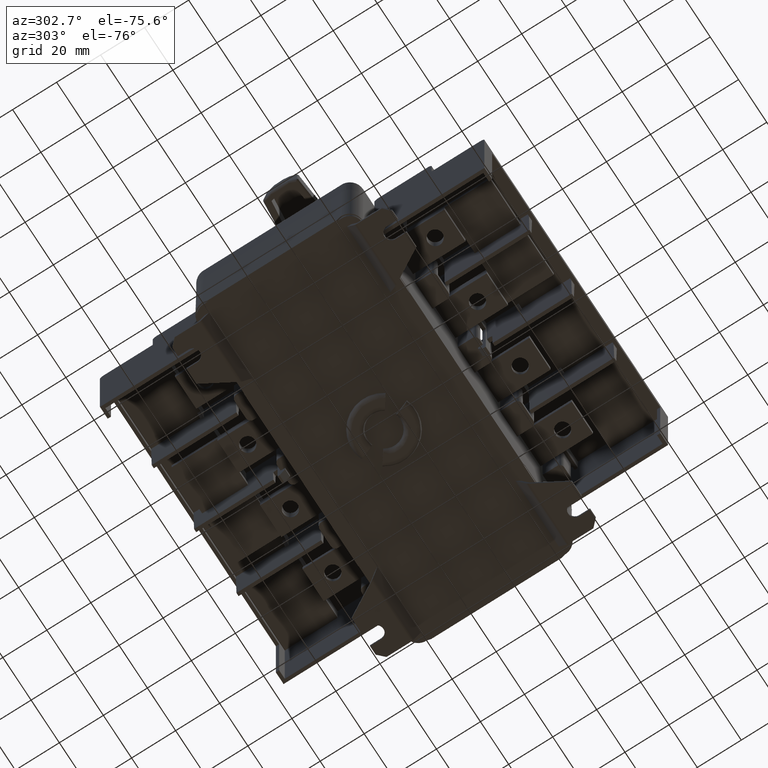
[diagram: clean part render]
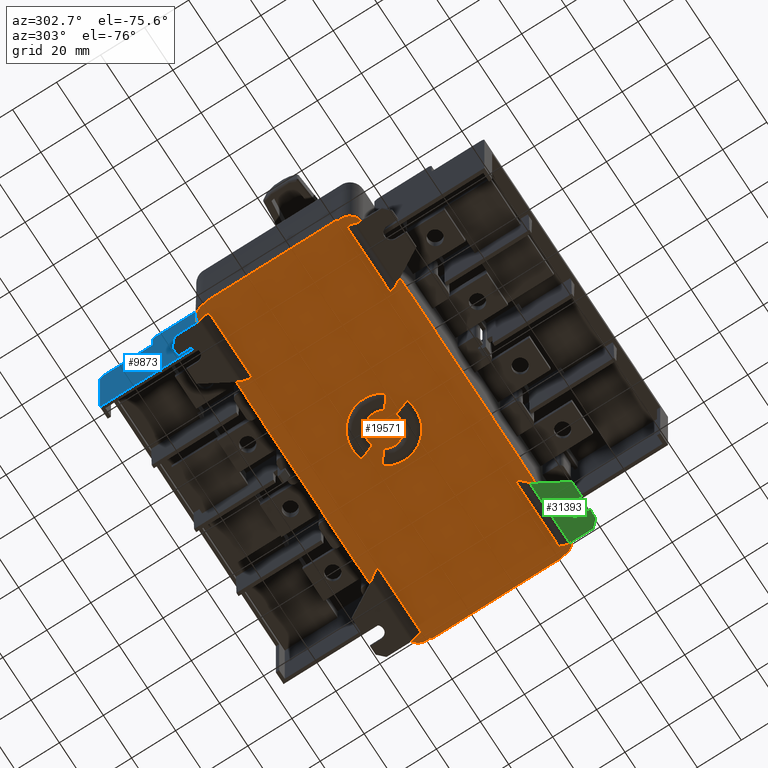
[diagram: same view with three faces highlighted in distinct colors, each labeled with its STEP entity id]
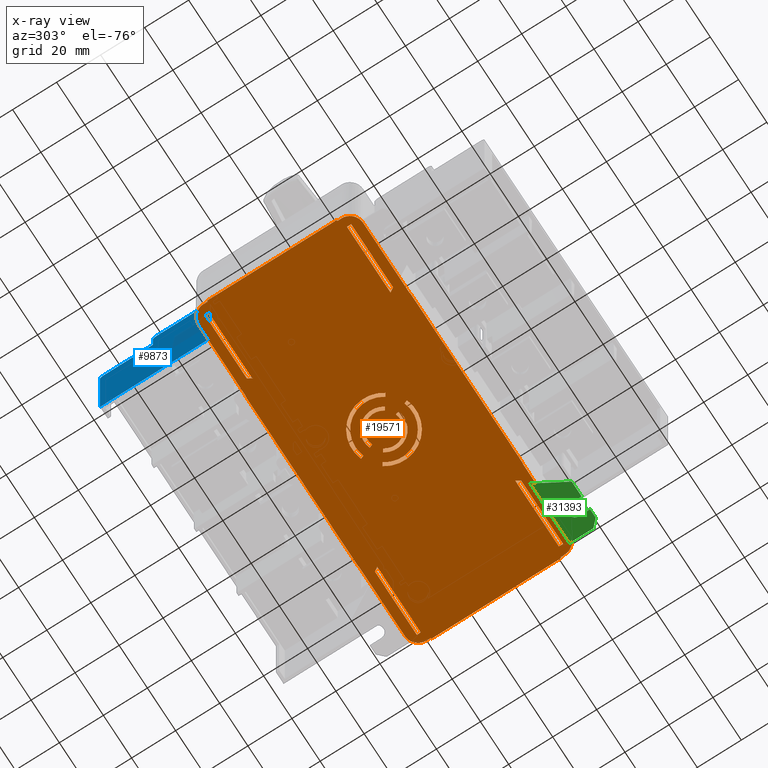
[diagram: x-ray of the same camera — body ghosted, the three highlighted faces saturated]
A machine part, auxiliary view with three faces highlighted in distinct colors.
The next image is the same camera in x-ray (body ghosted, the three faces saturated) — at least one of them is partly hidden behind the body in this view.
Their STEP definitions:

[orange] entity #19571 — the highlighted planar face has unit normal (0, 0, 1).
#51 = CARTESIAN_POINT ( 'NONE',  ( 0.002094471664462055300, -0.2000000000000025100, -0.1406741090683172000 ) ) ;
#64 = VECTOR ( 'NONE', #22459, 1000.000000000000100 ) ;
#66 = ORIENTED_EDGE ( 'NONE', *, *, #9062, .T. ) ;
#115 = VERTEX_POINT ( 'NONE', #24952 ) ;
#132 = EDGE_CURVE ( 'NONE', #25472, #2476, #32640, .T. ) ;
#160 = EDGE_CURVE ( 'NONE', #23864, #21494, #12847, .T. ) ;
#190 = EDGE_LOOP ( 'NONE', ( #23857, #37404, #916, #6493, #32429 ) ) ;
#294 = DIRECTION ( 'NONE',  ( -0.0000000000000000000, -1.000000000000000000, -0.0000000000000000000 ) ) ;
#335 = VECTOR ( 'NONE', #13210, 1000.000000000000100 ) ;
#345 = ORIENTED_EDGE ( 'NONE', *, *, #34439, .F. ) ;
#566 = ORIENTED_EDGE ( 'NONE', *, *, #7958, .F. ) ;
#572 = LINE ( 'NONE', #7226, #39124 ) ;
#585 = EDGE_CURVE ( 'NONE', #2476, #2756, #30519, .T. ) ;
#618 = CARTESIAN_POINT ( 'NONE',  ( 0.002094471664462055300, -0.2000000000000025100, -4.270019519516029800 ) ) ;
#620 = ORIENTED_EDGE ( 'NONE', *, *, #24465, .F. ) ;
#665 = LINE ( 'NONE', #36728, #33989 ) ;
#841 = VERTEX_POINT ( 'NONE', #11527 ) ;
#916 = ORIENTED_EDGE ( 'NONE', *, *, #14933, .F. ) ;
#1191 = EDGE_CURVE ( 'NONE', #11430, #25472, #20059, .T. ) ;
#1203 = EDGE_LOOP ( 'NONE', ( #20675, #33537, #1840, #27173, #6197 ) ) ;
#1585 = EDGE_CURVE ( 'NONE', #11119, #14227, #26264, .T. ) ;
#1754 = VECTOR ( 'NONE', #3989, 1000.000000000000000 ) ;
#1840 = ORIENTED_EDGE ( 'NONE', *, *, #11761, .F. ) ;
#1877 = ORIENTED_EDGE ( 'NONE', *, *, #24648, .F. ) ;
#1879 = CARTESIAN_POINT ( 'NONE',  ( -35.21157719051585400, -0.2000000000000025100, -6.174038756865900100 ) ) ;
#2026 = EDGE_CURVE ( 'NONE', #115, #43028, #24240, .T. ) ;
#2341 = VERTEX_POINT ( 'NONE', #5651 ) ;
#2406 = EDGE_CURVE ( 'NONE', #11258, #32479, #10724, .T. ) ;
#2476 = VERTEX_POINT ( 'NONE', #41782 ) ;
#2481 = CARTESIAN_POINT ( 'NONE',  ( -123.4842338622105900, -0.1999999999999885200, -6.174038756865920500 ) ) ;
#2650 = ORIENTED_EDGE ( 'NONE', *, *, #5289, .F. ) ;
#2707 = VECTOR ( 'NONE', #21878, 1000.000000000000000 ) ;
#2720 = CARTESIAN_POINT ( 'NONE',  ( -35.21157719446195200, -0.2000000000000025100, -68.82456497406150200 ) ) ;
#2756 = VERTEX_POINT ( 'NONE', #30797 ) ;
#2765 = LINE ( 'NONE', #28255, #26705 ) ;
#2963 = CARTESIAN_POINT ( 'NONE',  ( -79.34790552990919800, -0.2000000000000025100, -37.49930187198290100 ) ) ;
#2969 = DIRECTION ( 'NONE',  ( 1.000000000000000000, 0.0000000000000000000, 0.0000000000000000000 ) ) ;
#3491 = DIRECTION ( 'NONE',  ( 0.0000000000000000000, 0.0000000000000000000, 1.000000000000000000 ) ) ;
#3504 = CARTESIAN_POINT ( 'NONE',  ( -158.2737750162825100, -0.2000000000000025100, -66.99930186546369300 ) ) ;
#3692 = DIRECTION ( 'NONE',  ( 0.0000000000000000000, 1.000000000000000000, 0.0000000000000000000 ) ) ;
#3712 = LINE ( 'NONE', #32381, #64 ) ;
#3795 = CARTESIAN_POINT ( 'NONE',  ( -81.91305660313490500, -0.1999999999883775000, -30.45160721546369900 ) ) ;
#3833 = CARTESIAN_POINT ( 'NONE',  ( -157.9659110940365000, -0.2000000000000025100, -4.243283958416244900 ) ) ;
#3914 = DIRECTION ( 'NONE',  ( 1.000000000000000000, -1.122364443586768100E-017, 0.0000000000000000000 ) ) ;
#3989 = DIRECTION ( 'NONE',  ( -0.0000000000000000000, -0.0000000000000000000, -1.000000000000000000 ) ) ;
#4065 = CIRCLE ( 'NONE', #17113, 1.500000000000154800 ) ;
#4130 = CARTESIAN_POINT ( 'NONE',  ( -122.4743242843903900, -0.1999999999999885200, -5.064947847775010300 ) ) ;
#4140 = CARTESIAN_POINT ( 'NONE',  ( -0.4220360403885739500, -0.2000000000000025100, -74.99930186546370700 ) ) ;
#4202 = EDGE_CURVE ( 'NONE', #20645, #20740, #20747, .T. ) ;
#4211 = ORIENTED_EDGE ( 'NONE', *, *, #10341, .F. ) ;
#4260 = CARTESIAN_POINT ( 'NONE',  ( -0.4220360403885739500, -0.2000000000000025100, -6.140491341919870100 ) ) ;
#4313 = AXIS2_PLACEMENT_3D ( 'NONE', #2963, #36278, #19657 ) ;
#4326 = VERTEX_POINT ( 'NONE', #4381 ) ;
#4354 = VECTOR ( 'NONE', #24785, 1000.000000000000100 ) ;
#4362 = VERTEX_POINT ( 'NONE', #1879 ) ;
#4381 = CARTESIAN_POINT ( 'NONE',  ( -119.3479055283354000, -0.2000000000000030100, 0.0006981345362970839900 ) ) ;
#4552 = CARTESIAN_POINT ( 'NONE',  ( -4.347905528335539700, -0.2000000000000025100, -74.99930186546370700 ) ) ;
#4590 =( BOUNDED_CURVE ( )  B_SPLINE_CURVE ( 3, ( #33816, #24177, #30891, #27528 ),
 .UNSPECIFIED., .F., .F. ) 
 B_SPLINE_CURVE_WITH_KNOTS ( ( 4, 4 ),
 ( 0.0000000000000000000, 0.001931341339190807000 ),
 .UNSPECIFIED. ) 
 CURVE ( )  GEOMETRIC_REPRESENTATION_ITEM ( )  RATIONAL_B_SPLINE_CURVE ( ( 1.000000000000000000, 0.9913931346834109500, 0.9913931346834109500, 1.000000000000000000 ) ) 
 REPRESENTATION_ITEM ( '' )  );
#4711 = LINE ( 'NONE', #7695, #13487 ) ;
#4751 = CARTESIAN_POINT ( 'NONE',  ( -158.6979055283355300, -0.2000000000000025100, -74.99930186546370700 ) ) ;
#4805 = CARTESIAN_POINT ( 'NONE',  ( -1.575944010087480200, -0.2000000000000300100, -73.29353438887676500 ) ) ;
#4825 = DIRECTION ( 'NONE',  ( -0.0000000000000000000, -1.000000000000000000, -0.0000000000000000000 ) ) ;
#4868 = ORIENTED_EDGE ( 'NONE', *, *, #9968, .F. ) ;
#4900 = LINE ( 'NONE', #4140, #1754 ) ;
#4945 = AXIS2_PLACEMENT_3D ( 'NONE', #16546, #294, #36523 ) ;
#5033 = VECTOR ( 'NONE', #22745, 1000.000000000000000 ) ;
#5082 = CARTESIAN_POINT ( 'NONE',  ( -6.422145710120490800, -0.2000000000000025100, -74.85792962185910000 ) ) ;
#5148 = DIRECTION ( 'NONE',  ( 0.0000000000000000000, 0.0000000000000000000, 1.000000000000000000 ) ) ;
#5289 = EDGE_CURVE ( 'NONE', #23341, #11430, #11359, .T. ) ;
#5428 = CIRCLE ( 'NONE', #42246, 1.500000000000001300 ) ;
#5490 = CIRCLE ( 'NONE', #26729, 1.500000000000001300 ) ;
#5542 = EDGE_CURVE ( 'NONE', #34669, #8844, #21153, .T. ) ;
#5622 = DIRECTION ( 'NONE',  ( 1.000000000000000000, 0.0000000000000000000, 0.0000000000000000000 ) ) ;
#5649 = FACE_BOUND ( 'NONE', #7432, .T. ) ;
#5651 = CARTESIAN_POINT ( 'NONE',  ( -83.78263119263911600, -0.1999999999953525100, -25.31499324745490000 ) ) ;
#5916 = DIRECTION ( 'NONE',  ( 0.0000000000000000000, 0.0000000000000000000, 1.000000000000000000 ) ) ;
#5951 = EDGE_CURVE ( 'NONE', #34333, #29510, #32369, .T. ) ;
#5983 = VERTEX_POINT ( 'NONE', #6185 ) ;
#6104 = CARTESIAN_POINT ( 'NONE',  ( -0.7298999626343459800, -0.2000000000000025100, -70.75531977251120000 ) ) ;
#6185 = CARTESIAN_POINT ( 'NONE',  ( -39.34790552833555200, -0.2000000000000090000, -0.1406741090683194000 ) ) ;
#6197 = ORIENTED_EDGE ( 'NONE', *, *, #37645, .F. ) ;
#6282 = VERTEX_POINT ( 'NONE', #38031 ) ;
#6303 = DIRECTION ( 'NONE',  ( 0.0000000000000000000, 0.0000000000000000000, -1.000000000000000000 ) ) ;
#6420 = VERTEX_POINT ( 'NONE', #19015 ) ;
#6421 = CARTESIAN_POINT ( 'NONE',  ( -4.347905528335539700, -0.2000000000000025100, -6.174038756865900100 ) ) ;
#6493 = ORIENTED_EDGE ( 'NONE', *, *, #18164, .F. ) ;
#6669 = VECTOR ( 'NONE', #17595, 1000.000000000000000 ) ;
#6672 = FACE_BOUND ( 'NONE', #29640, .T. ) ;
#6797 = CIRCLE ( 'NONE', #4313, 12.96627041062015800 ) ;
#6826 = CARTESIAN_POINT ( 'NONE',  ( 0.002094471664462055300, -0.2000000000000025100, -74.85792962185900000 ) ) ;
#6876 = ORIENTED_EDGE ( 'NONE', *, *, #132, .F. ) ;
#6900 = CARTESIAN_POINT ( 'NONE',  ( -82.43762301712499200, -0.1999999999990995100, -29.01037283804575000 ) ) ;
#7131 = CARTESIAN_POINT ( 'NONE',  ( -68.72655861684830800, -0.2000000000000025100, -44.93644904773080400 ) ) ;
#7226 = CARTESIAN_POINT ( 'NONE',  ( -76.78275444833529700, -0.1999999999883800000, -44.54699652546369700 ) ) ;
#7328 = ORIENTED_EDGE ( 'NONE', *, *, #13318, .F. ) ;
#7347 = DIRECTION ( 'NONE',  ( 1.000000000000000000, 0.0000000000000000000, 0.0000000000000000000 ) ) ;
#7381 = AXIS2_PLACEMENT_3D ( 'NONE', #19043, #15442, #28941 ) ;
#7404 = CARTESIAN_POINT ( 'NONE',  ( -79.34790552990919800, -0.2000000000000025100, -37.49930187198290100 ) ) ;
#7432 = EDGE_LOOP ( 'NONE', ( #31086, #6876, #9853, #2650, #42581 ) ) ;
#7574 = LINE ( 'NONE', #10633, #21587 ) ;
#7585 = EDGE_CURVE ( 'NONE', #8843, #35506, #24720, .T. ) ;
#7588 = CARTESIAN_POINT ( 'NONE',  ( -0.7298999626343459800, -0.2000000000000025100, -4.243283958416270700 ) ) ;
#7695 = CARTESIAN_POINT ( 'NONE',  ( 0.002094471664462055300, -0.2000000000000025100, -4.270019519516099000 ) ) ;
#7909 = CARTESIAN_POINT ( 'NONE',  ( -85.49975796032030900, -0.1999999999971104900, -33.19172841766000200 ) ) ;
#7958 = EDGE_CURVE ( 'NONE', #4326, #27105, #30956, .T. ) ;
#8041 = EDGE_CURVE ( 'NONE', #5983, #841, #12213, .T. ) ;
#8071 = DIRECTION ( 'NONE',  ( 0.0000000000000000000, 0.0000000000000000000, 1.000000000000000000 ) ) ;
#8154 = DIRECTION ( 'NONE',  ( 0.0000000000000000000, 0.0000000000000000000, 1.000000000000000000 ) ) ;
#8184 = CARTESIAN_POINT ( 'NONE',  ( -39.34790552833555200, -0.2000000000000235200, -75.99930186546370700 ) ) ;
#8208 = CIRCLE ( 'NONE', #4945, 9.033729589379548800 ) ;
#8210 = CARTESIAN_POINT ( 'NONE',  ( -119.3479055283354000, -0.2000000000000000100, -0.1406741090683391900 ) ) ;
#8261 =( BOUNDED_CURVE ( )  B_SPLINE_CURVE ( 3, ( #11331, #4805, #21739, #5082 ),
 .UNSPECIFIED., .F., .F. ) 
 B_SPLINE_CURVE_WITH_KNOTS ( ( 4, 4 ),
 ( 0.0000000000000000000, 0.007452055741065036600 ),
 .UNSPECIFIED. ) 
 CURVE ( )  GEOMETRIC_REPRESENTATION_ITEM ( )  RATIONAL_B_SPLINE_CURVE ( ( 1.000000000000000000, 0.8741631191513600200, 0.8741631191513600200, 1.000000000000000000 ) ) 
 REPRESENTATION_ITEM ( '' )  );
#8305 = CARTESIAN_POINT ( 'NONE',  ( -154.3479055283355000, -0.2000000000000025100, -70.72858421141140200 ) ) ;
#8315 = VECTOR ( 'NONE', #14110, 1000.000000000000000 ) ;
#8420 = CARTESIAN_POINT ( 'NONE',  ( 0.002094471664462055300, -0.2000000000000025100, -70.72858421141140200 ) ) ;
#8470 = EDGE_CURVE ( 'NONE', #5983, #27105, #14801, .T. ) ;
#8490 = ORIENTED_EDGE ( 'NONE', *, *, #14480, .F. ) ;
#8576 = VERTEX_POINT ( 'NONE', #6900 ) ;
#8602 = CARTESIAN_POINT ( 'NONE',  ( -124.6653271762659900, -0.1999999999999835000, -4.270019519516119500 ) ) ;
#8630 = LINE ( 'NONE', #27261, #42964 ) ;
#8766 = EDGE_CURVE ( 'NONE', #32874, #14227, #4900, .T. ) ;
#8843 = VERTEX_POINT ( 'NONE', #26368 ) ;
#8844 = VERTEX_POINT ( 'NONE', #26082 ) ;
#9062 = EDGE_CURVE ( 'NONE', #8843, #29078, #2765, .T. ) ;
#9090 = CARTESIAN_POINT ( 'NONE',  ( -79.34790552990919800, -0.2000000000000025100, -37.49930187198290100 ) ) ;
#9132 = EDGE_LOOP ( 'NONE', ( #20654, #14611, #23083, #566, #33841, #1877, #36174, #36526, #42754, #19347, #8490, #620, #9194, #4868, #38951, #13973, #35885, #34848, #23736, #10880, #20483, #9473, #33228, #30098, #19228, #28450, #20882, #21396 ) ) ;
#9178 = LINE ( 'NONE', #36948, #335 ) ;
#9194 = ORIENTED_EDGE ( 'NONE', *, *, #4202, .F. ) ;
#9219 = CIRCLE ( 'NONE', #25768, 12.96627041062015800 ) ;
#9238 = DIRECTION ( 'NONE',  ( 0.0000000000000000000, 0.0000000000000000000, 1.000000000000000000 ) ) ;
#9328 = VERTEX_POINT ( 'NONE', #24114 ) ;
#9384 = CARTESIAN_POINT ( 'NONE',  ( -158.2737750162825100, -0.2000000000000025100, -74.99930186546370700 ) ) ;
#9473 = ORIENTED_EDGE ( 'NONE', *, *, #23749, .F. ) ;
#9512 = EDGE_LOOP ( 'NONE', ( #25516, #37805, #66, #11783 ) ) ;
#9774 = CARTESIAN_POINT ( 'NONE',  ( -158.2737750162825100, -0.2000000000000000100, -7.999301865463709600 ) ) ;
#9853 = ORIENTED_EDGE ( 'NONE', *, *, #1191, .F. ) ;
#9949 = DIRECTION ( 'NONE',  ( 1.000000000000000000, 0.0000000000000000000, 0.0000000000000000000 ) ) ;
#9968 = EDGE_CURVE ( 'NONE', #29819, #20645, #4590, .T. ) ;
#9992 = VECTOR ( 'NONE', #18753, 1000.000000000000000 ) ;
#10002 = ORIENTED_EDGE ( 'NONE', *, *, #29484, .T. ) ;
#10237 = CIRCLE ( 'NONE', #17469, 14.48997487421321800 ) ;
#10247 = CARTESIAN_POINT ( 'NONE',  ( -39.34790552833555200, -0.2000000000000130300, -74.99930186546370700 ) ) ;
#10341 = EDGE_CURVE ( 'NONE', #26597, #29510, #35467, .T. ) ;
#10515 = CIRCLE ( 'NONE', #31020, 1.500000000000000000 ) ;
#10594 = CARTESIAN_POINT ( 'NONE',  ( -154.3479055283355000, -0.2000000000000025100, -74.99930186546370700 ) ) ;
#10633 = CARTESIAN_POINT ( 'NONE',  ( -155.6979055283355300, -0.2000000000000025100, -66.99930186546369300 ) ) ;
#10670 = CARTESIAN_POINT ( 'NONE',  ( -34.92244866265890100, -0.2000000000000025100, -5.814947847775020100 ) ) ;
#10724 = LINE ( 'NONE', #19564, #5033 ) ;
#10828 = AXIS2_PLACEMENT_3D ( 'NONE', #35588, #39093, #42003 ) ;
#10849 = CARTESIAN_POINT ( 'NONE',  ( -158.6979055283355300, -0.2000000000000000100, -66.99930186546369300 ) ) ;
#10875 = DIRECTION ( 'NONE',  ( 0.0000000000000000000, 0.0000000000000000000, -1.000000000000000000 ) ) ;
#10880 = ORIENTED_EDGE ( 'NONE', *, *, #26395, .F. ) ;
#10938 = DIRECTION ( 'NONE',  ( 0.0000000000000000000, 1.000000000000000000, 0.0000000000000000000 ) ) ;
#11080 = CARTESIAN_POINT ( 'NONE',  ( -0.5255482635673498500, -0.2000000000000298800, -4.856358976215178200 ) ) ;
#11119 = VERTEX_POINT ( 'NONE', #35444 ) ;
#11258 = VERTEX_POINT ( 'NONE', #10247 ) ;
#11305 = CARTESIAN_POINT ( 'NONE',  ( -152.2736653465505000, -0.2000000000000025100, -0.1406741090683343900 ) ) ;
#11331 = CARTESIAN_POINT ( 'NONE',  ( -0.7298999626343459800, -0.2000000000000025100, -70.75531977251120000 ) ) ;
#11359 = LINE ( 'NONE', #25619, #26913 ) ;
#11430 = VERTEX_POINT ( 'NONE', #18200 ) ;
#11527 = CARTESIAN_POINT ( 'NONE',  ( -6.422145710120490800, -0.2000000000000025100, -0.1406741090683472100 ) ) ;
#11716 = EDGE_CURVE ( 'NONE', #17172, #32874, #21850, .T. ) ;
#11761 = EDGE_CURVE ( 'NONE', #17345, #32783, #16099, .T. ) ;
#11783 = ORIENTED_EDGE ( 'NONE', *, *, #28485, .F. ) ;
#11788 = VECTOR ( 'NONE', #27014, 1000.000000000000200 ) ;
#11835 = LINE ( 'NONE', #23682, #24823 ) ;
#11898 = CARTESIAN_POINT ( 'NONE',  ( -74.91317985902219300, -0.1999999999944225000, -49.68361049354240300 ) ) ;
#11976 = DIRECTION ( 'NONE',  ( -1.000000000000000000, -0.0000000000000000000, -0.0000000000000000000 ) ) ;
#11987 =( BOUNDED_CURVE ( )  B_SPLINE_CURVE ( 3, ( #23279, #33345, #16168, #22843 ),
 .UNSPECIFIED., .F., .F. ) 
 B_SPLINE_CURVE_WITH_KNOTS ( ( 4, 4 ),
 ( 1.755771606739170500E-018, 0.007452050543765641000 ),
 .UNSPECIFIED. ) 
 CURVE ( )  GEOMETRIC_REPRESENTATION_ITEM ( )  RATIONAL_B_SPLINE_CURVE ( ( 1.000000000000000000, 0.8741631191513600200, 0.8741631191513600200, 1.000000000000000000 ) ) 
 REPRESENTATION_ITEM ( '' )  );
#12038 = ORIENTED_EDGE ( 'NONE', *, *, #32371, .F. ) ;
#12089 = VECTOR ( 'NONE', #11976, 1000.000000000000000 ) ;
#12108 = CARTESIAN_POINT ( 'NONE',  ( 0.002094471664462055300, -0.2000000000000025100, -74.85792962185910000 ) ) ;
#12213 = LINE ( 'NONE', #51, #35648 ) ;
#12260 = CARTESIAN_POINT ( 'NONE',  ( -0.4220360403885730100, -0.2000000000000025100, -68.85811238900748800 ) ) ;
#12301 = EDGE_CURVE ( 'NONE', #14834, #19084, #41622, .T. ) ;
#12369 = FACE_BOUND ( 'NONE', #1203, .T. ) ;
#12559 = VERTEX_POINT ( 'NONE', #20490 ) ;
#12634 = CARTESIAN_POINT ( 'NONE',  ( -158.2737750162825100, -0.2000000000000025100, -68.85811238900748800 ) ) ;
#12847 = LINE ( 'NONE', #9384, #13897 ) ;
#12977 = VECTOR ( 'NONE', #24842, 1000.000000000000000 ) ;
#13204 = CARTESIAN_POINT ( 'NONE',  ( -158.2737750162825100, -0.2000000000000025100, -74.99930186546370700 ) ) ;
#13210 = DIRECTION ( 'NONE',  ( -0.5000000000000011100, 0.0000000000000000000, -0.8660254037844379300 ) ) ;
#13241 = DIRECTION ( 'NONE',  ( -0.0000000000000000000, 1.000000000000000000, -0.0000000000000000000 ) ) ;
#13318 = EDGE_CURVE ( 'NONE', #14834, #43098, #25325, .T. ) ;
#13447 = DIRECTION ( 'NONE',  ( 0.0000000000000000000, 0.0000000000000000000, 1.000000000000000000 ) ) ;
#13487 = VECTOR ( 'NONE', #14055, 1000.000000000000000 ) ;
#13834 =( BOUNDED_CURVE ( )  B_SPLINE_CURVE ( 3, ( #36800, #16835, #23952, #37239 ),
 .UNSPECIFIED., .F., .T. ) 
 B_SPLINE_CURVE_WITH_KNOTS ( ( 4, 4 ),
 ( 0.0000000000000000000, 0.007452050543765535200 ),
 .UNSPECIFIED. ) 
 CURVE ( )  GEOMETRIC_REPRESENTATION_ITEM ( )  RATIONAL_B_SPLINE_CURVE ( ( 1.000000000000000000, 0.8741631191513640200, 0.8741631191513640200, 1.000000000000000000 ) ) 
 REPRESENTATION_ITEM ( '' )  );
#13897 = VECTOR ( 'NONE', #9238, 1000.000000000000000 ) ;
#13918 = FACE_BOUND ( 'NONE', #30791, .T. ) ;
#13958 = EDGE_LOOP ( 'NONE', ( #30499, #32835, #39954, #23423, #18236 ) ) ;
#13973 = ORIENTED_EDGE ( 'NONE', *, *, #2026, .F. ) ;
#14011 = AXIS2_PLACEMENT_3D ( 'NONE', #30478, #37187, #10875 ) ;
#14043 = VERTEX_POINT ( 'NONE', #23672 ) ;
#14055 = DIRECTION ( 'NONE',  ( -1.000000000000000000, -0.0000000000000000000, -0.0000000000000000000 ) ) ;
#14110 = DIRECTION ( 'NONE',  ( -0.8191520442889898000, -0.0000000000000000000, 0.5735764363510488200 ) ) ;
#14182 = CARTESIAN_POINT ( 'NONE',  ( -76.25818803438321000, -0.2000000000000300100, -45.98823090289590000 ) ) ;
#14183 = DIRECTION ( 'NONE',  ( -0.0000000000000000000, -0.0000000000000000000, -1.000000000000000000 ) ) ;
#14227 = VERTEX_POINT ( 'NONE', #42553 ) ;
#14273 = EDGE_LOOP ( 'NONE', ( #18576, #18749, #4211, #30126 ) ) ;
#14311 = CARTESIAN_POINT ( 'NONE',  ( -152.2736653465505000, -0.2000000000000025100, -0.1406741090683343900 ) ) ;
#14336 = LINE ( 'NONE', #35752, #39868 ) ;
#14378 = LINE ( 'NONE', #25540, #14934 ) ;
#14379 =( BOUNDED_CURVE ( )  B_SPLINE_CURVE ( 3, ( #32049, #18214, #15454, #38767 ),
 .UNSPECIFIED., .F., .T. ) 
 B_SPLINE_CURVE_WITH_KNOTS ( ( 4, 4 ),
 ( 0.0000000000000000000, 0.001931341382892498600 ),
 .UNSPECIFIED. ) 
 CURVE ( )  GEOMETRIC_REPRESENTATION_ITEM ( )  RATIONAL_B_SPLINE_CURVE ( ( 1.000000000000000000, 0.9913931346834109500, 0.9913931346834109500, 1.000000000000000000 ) ) 
 REPRESENTATION_ITEM ( '' )  );
#14480 = EDGE_CURVE ( 'NONE', #34532, #23349, #28394, .T. ) ;
#14609 = CARTESIAN_POINT ( 'NONE',  ( -157.9659110940365000, -0.2000000000000025100, -4.243283958416244900 ) ) ;
#14611 = ORIENTED_EDGE ( 'NONE', *, *, #8041, .F. ) ;
#14801 = LINE ( 'NONE', #8184, #22050 ) ;
#14834 = VERTEX_POINT ( 'NONE', #24548 ) ;
#14856 = CARTESIAN_POINT ( 'NONE',  ( -119.3479055283354000, -0.1999999999999889900, -75.99930186546370700 ) ) ;
#14859 = CIRCLE ( 'NONE', #21120, 7.510025125786371300 ) ;
#14933 = EDGE_CURVE ( 'NONE', #17535, #31250, #14378, .T. ) ;
#14934 = VECTOR ( 'NONE', #28888, 1000.000000000000000 ) ;
#15051 = DIRECTION ( 'NONE',  ( 0.3420201433256628300, -0.0000000000000000000, -0.9396926207859105400 ) ) ;
#15099 = CARTESIAN_POINT ( 'NONE',  ( -158.6979055283355300, -0.2000000000000000100, -7.999301865463709600 ) ) ;
#15210 = VERTEX_POINT ( 'NONE', #15871 ) ;
#15287 = CARTESIAN_POINT ( 'NONE',  ( 0.002094471664462055300, -0.2000000000000025100, -70.72858421141140200 ) ) ;
#15442 = DIRECTION ( 'NONE',  ( 2.966608577261725000E-016, -1.000000000000000000, -1.682447329014820100E-015 ) ) ;
#15454 = CARTESIAN_POINT ( 'NONE',  ( -158.1702627931037500, -0.2000000000000300700, -4.856358976215172900 ) ) ;
#15491 = CARTESIAN_POINT ( 'NONE',  ( -79.34790552990919800, -0.2000000000000025100, -28.46557228260308700 ) ) ;
#15505 = CARTESIAN_POINT ( 'NONE',  ( -154.3479055283355000, -0.2000000000000000100, -6.174038756865920500 ) ) ;
#15619 = PLANE ( 'NONE',  #16841 ) ;
#15742 = VERTEX_POINT ( 'NONE', #36629 ) ;
#15748 = VERTEX_POINT ( 'NONE', #36776 ) ;
#15871 = CARTESIAN_POINT ( 'NONE',  ( -34.92244866660495000, -0.2000000000000025100, -69.18365588315239700 ) ) ;
#16043 = CARTESIAN_POINT ( 'NONE',  ( -0.7298999626343459800, -0.2000000000000025100, -4.243283958416270700 ) ) ;
#16099 = LINE ( 'NONE', #37978, #12977 ) ;
#16155 = VECTOR ( 'NONE', #30254, 1000.000000000000000 ) ;
#16168 = CARTESIAN_POINT ( 'NONE',  ( -1.575944010087478000, -0.2000000000000300100, -1.705069342050635100 ) ) ;
#16204 = EDGE_CURVE ( 'NONE', #21852, #40764, #665, .T. ) ;
#16383 = VERTEX_POINT ( 'NONE', #8602 ) ;
#16445 = CARTESIAN_POINT ( 'NONE',  ( -79.34790552990919800, -0.2000000000000025100, -37.49930187198290100 ) ) ;
#16495 = DIRECTION ( 'NONE',  ( -0.0000000000000000000, -0.0000000000000000000, -1.000000000000000000 ) ) ;
#16546 = CARTESIAN_POINT ( 'NONE',  ( -79.34790552990919800, -0.2000000000000000100, -37.49930187198315000 ) ) ;
#16585 = DIRECTION ( 'NONE',  ( -1.000000000000000000, -0.0000000000000000000, -0.0000000000000000000 ) ) ;
#16682 = ORIENTED_EDGE ( 'NONE', *, *, #12301, .T. ) ;
#16683 = AXIS2_PLACEMENT_3D ( 'NONE', #9090, #25915, #19242 ) ;
#16835 = CARTESIAN_POINT ( 'NONE',  ( -154.9493164850315200, -0.2000000000000301800, -74.85792962185905700 ) ) ;
#16841 = AXIS2_PLACEMENT_3D ( 'NONE', #42551, #38934, #42407 ) ;
#16991 = EDGE_CURVE ( 'NONE', #25066, #34669, #31844, .T. ) ;
#17057 = EDGE_CURVE ( 'NONE', #30579, #4362, #10515, .T. ) ;
#17113 = AXIS2_PLACEMENT_3D ( 'NONE', #4130, #3692, #37126 ) ;
#17172 = VERTEX_POINT ( 'NONE', #16043 ) ;
#17345 = VERTEX_POINT ( 'NONE', #32907 ) ;
#17423 = CARTESIAN_POINT ( 'NONE',  ( -154.3479055283355000, -0.2000000000000000100, -4.270019519516094600 ) ) ;
#17469 = AXIS2_PLACEMENT_3D ( 'NONE', #7404, #27721, #3914 ) ;
#17525 = EDGE_CURVE ( 'NONE', #23349, #23864, #38088, .T. ) ;
#17535 = VERTEX_POINT ( 'NONE', #17423 ) ;
#17595 = DIRECTION ( 'NONE',  ( -0.0000000000000000000, -0.0000000000000000000, -1.000000000000000000 ) ) ;
#17959 = CARTESIAN_POINT ( 'NONE',  ( -152.2736653465505000, -0.2000000000000025100, -74.85792962185910000 ) ) ;
#18164 = EDGE_CURVE ( 'NONE', #16383, #17535, #4711, .T. ) ;
#18200 = CARTESIAN_POINT ( 'NONE',  ( -154.3479055283355000, -0.2000000000000000100, -68.82456497406150200 ) ) ;
#18214 = CARTESIAN_POINT ( 'NONE',  ( -158.2737750162822600, -0.2000000000000300700, -5.494251694092243500 ) ) ;
#18236 = ORIENTED_EDGE ( 'NONE', *, *, #28540, .T. ) ;
#18425 = LINE ( 'NONE', #41602, #38261 ) ;
#18435 = VECTOR ( 'NONE', #16495, 1000.000000000000000 ) ;
#18456 = VECTOR ( 'NONE', #5622, 1000.000000000000000 ) ;
#18457 = LINE ( 'NONE', #33078, #28841 ) ;
#18464 = DIRECTION ( 'NONE',  ( -0.3420201433256344600, -0.0000000000000000000, 0.9396926207859207500 ) ) ;
#18485 = CARTESIAN_POINT ( 'NONE',  ( 0.002094471664462050100, -0.2000000000000000100, -66.99930186546369300 ) ) ;
#18576 = ORIENTED_EDGE ( 'NONE', *, *, #20766, .F. ) ;
#18749 = ORIENTED_EDGE ( 'NONE', *, *, #5951, .T. ) ;
#18753 = DIRECTION ( 'NONE',  ( 1.000000000000000000, 0.0000000000000000000, 0.0000000000000000000 ) ) ;
#19015 = CARTESIAN_POINT ( 'NONE',  ( -0.4220360403885730100, -0.2000000000000025100, -68.85811238900748800 ) ) ;
#19043 = CARTESIAN_POINT ( 'NONE',  ( -79.34790552990919800, -0.2000000000000195000, -37.49930187198325600 ) ) ;
#19084 = VERTEX_POINT ( 'NONE', #33041 ) ;
#19228 = ORIENTED_EDGE ( 'NONE', *, *, #22975, .F. ) ;
#19242 = DIRECTION ( 'NONE',  ( 0.0000000000000000000, 0.0000000000000000000, 1.000000000000000000 ) ) ;
#19290 = CIRCLE ( 'NONE', #14011, 12.96627041062013700 ) ;
#19347 = ORIENTED_EDGE ( 'NONE', *, *, #17525, .F. ) ;
#19472 = LINE ( 'NONE', #22880, #18435 ) ;
#19525 = VECTOR ( 'NONE', #29374, 1000.000000000000000 ) ;
#19551 = CIRCLE ( 'NONE', #29991, 9.033729589379810000 ) ;
#19564 = CARTESIAN_POINT ( 'NONE',  ( 0.002094471664462055300, -0.2000000000000025100, -74.99930186546370700 ) ) ;
#19571 = ADVANCED_FACE ( 'NONE', ( #43126, #12369, #29007, #40511, #41557, #5649, #13918, #6672, #32667 ), #15619, .F. ) ;
#19657 = DIRECTION ( 'NONE',  ( -1.284358943782111200E-014, 0.0000000000000000000, -1.000000000000000000 ) ) ;
#19861 = LINE ( 'NONE', #12108, #12089 ) ;
#20059 = LINE ( 'NONE', #10594, #32549 ) ;
#20111 = CARTESIAN_POINT ( 'NONE',  ( -79.34790552990929800, -0.2000000000000025100, -37.49930187198250300 ) ) ;
#20279 = DIRECTION ( 'NONE',  ( 0.0000000000000000000, 1.000000000000000000, 0.0000000000000000000 ) ) ;
#20483 = ORIENTED_EDGE ( 'NONE', *, *, #40186, .F. ) ;
#20490 = CARTESIAN_POINT ( 'NONE',  ( -34.03048388040589600, -0.2000000000000000100, -70.72858421141140200 ) ) ;
#20645 = VERTEX_POINT ( 'NONE', #12634 ) ;
#20654 = ORIENTED_EDGE ( 'NONE', *, *, #37230, .F. ) ;
#20675 = ORIENTED_EDGE ( 'NONE', *, *, #36855, .F. ) ;
#20740 = VERTEX_POINT ( 'NONE', #3504 ) ;
#20747 = LINE ( 'NONE', #13204, #24924 ) ;
#20766 = EDGE_CURVE ( 'NONE', #34333, #28473, #8208, .T. ) ;
#20882 = ORIENTED_EDGE ( 'NONE', *, *, #8766, .F. ) ;
#20957 = EDGE_CURVE ( 'NONE', #2341, #35506, #33629, .T. ) ;
#21111 = EDGE_CURVE ( 'NONE', #43098, #8576, #19551, .T. ) ;
#21120 = AXIS2_PLACEMENT_3D ( 'NONE', #20111, #33504, #36872 ) ;
#21153 = LINE ( 'NONE', #618, #34222 ) ;
#21396 = ORIENTED_EDGE ( 'NONE', *, *, #11716, .F. ) ;
#21494 = VERTEX_POINT ( 'NONE', #27260 ) ;
#21509 = DIRECTION ( 'NONE',  ( 0.0000000000000000000, 0.0000000000000000000, 1.000000000000000000 ) ) ;
#21587 = VECTOR ( 'NONE', #27319, 1000.000000000000000 ) ;
#21616 = DIRECTION ( 'NONE',  ( 0.8191520442889940200, -0.0000000000000000000, -0.5735764363510429400 ) ) ;
#21739 = CARTESIAN_POINT ( 'NONE',  ( -3.746494571639495500, -0.2000000000000300100, -74.85792962185905700 ) ) ;
#21844 = EDGE_CURVE ( 'NONE', #22398, #17345, #43008, .T. ) ;
#21850 =( BOUNDED_CURVE ( )  B_SPLINE_CURVE ( 3, ( #7588, #11080, #24255, #4260 ),
 .UNSPECIFIED., .F., .T. ) 
 B_SPLINE_CURVE_WITH_KNOTS ( ( 4, 4 ),
 ( 0.0000000000000000000, 0.001931341339190684300 ),
 .UNSPECIFIED. ) 
 CURVE ( )  GEOMETRIC_REPRESENTATION_ITEM ( )  RATIONAL_B_SPLINE_CURVE ( ( 1.000000000000000000, 0.9913931346834119500, 0.9913931346834119500, 1.000000000000000000 ) ) 
 REPRESENTATION_ITEM ( '' )  );
#21852 = VERTEX_POINT ( 'NONE', #38417 ) ;
#21864 = LINE ( 'NONE', #37370, #36464 ) ;
#21878 = DIRECTION ( 'NONE',  ( 0.8191520442889940200, -0.0000000000000000000, -0.5735764363510429400 ) ) ;
#22050 = VECTOR ( 'NONE', #21509, 1000.000000000000000 ) ;
#22342 = CARTESIAN_POINT ( 'NONE',  ( -81.91648539827299700, -0.2000000000000245200, -30.44218667880485200 ) ) ;
#22398 = VERTEX_POINT ( 'NONE', #38923 ) ;
#22459 = DIRECTION ( 'NONE',  ( -0.4999999999998908100, 0.0000000000000000000, 0.8660254037845016600 ) ) ;
#22477 = EDGE_CURVE ( 'NONE', #115, #32479, #40386, .T. ) ;
#22531 = CARTESIAN_POINT ( 'NONE',  ( -76.77932565407140000, -0.2000000000000270200, -44.55641706244065100 ) ) ;
#22678 = CARTESIAN_POINT ( 'NONE',  ( -84.30376881152669500, -0.1999999999971485100, -23.88317940671185000 ) ) ;
#22692 = CARTESIAN_POINT ( 'NONE',  ( -4.347905528335539700, -0.2000000000000130300, -4.270019519516044900 ) ) ;
#22713 = VECTOR ( 'NONE', #28847, 1000.000000000000000 ) ;
#22745 = DIRECTION ( 'NONE',  ( -1.000000000000000000, -0.0000000000000000000, -0.0000000000000000000 ) ) ;
#22843 = CARTESIAN_POINT ( 'NONE',  ( -0.7298999626343459800, -0.2000000000000025100, -4.243283958416270700 ) ) ;
#22880 = CARTESIAN_POINT ( 'NONE',  ( -0.4220360403885744500, -0.2000000000000025100, -74.99930186546370700 ) ) ;
#22889 = DIRECTION ( 'NONE',  ( 1.000000000000000000, 0.0000000000000000000, 0.0000000000000000000 ) ) ;
#22959 = ORIENTED_EDGE ( 'NONE', *, *, #16991, .F. ) ;
#22975 = EDGE_CURVE ( 'NONE', #11119, #40764, #8630, .T. ) ;
#22990 = EDGE_CURVE ( 'NONE', #36562, #27289, #24765, .T. ) ;
#23003 = LINE ( 'NONE', #41843, #4354 ) ;
#23047 = VERTEX_POINT ( 'NONE', #2481 ) ;
#23083 = ORIENTED_EDGE ( 'NONE', *, *, #8470, .T. ) ;
#23163 = VECTOR ( 'NONE', #39779, 1000.000000000000000 ) ;
#23184 = VECTOR ( 'NONE', #40151, 1000.000000000000000 ) ;
#23279 = CARTESIAN_POINT ( 'NONE',  ( -6.422145710120490800, -0.2000000000000025100, -0.1406741090683472100 ) ) ;
#23341 = VERTEX_POINT ( 'NONE', #31541 ) ;
#23349 = VERTEX_POINT ( 'NONE', #15099 ) ;
#23355 = EDGE_CURVE ( 'NONE', #15748, #35718, #18425, .T. ) ;
#23361 = VECTOR ( 'NONE', #18464, 1000.000000000000200 ) ;
#23423 = ORIENTED_EDGE ( 'NONE', *, *, #28790, .F. ) ;
#23466 = VECTOR ( 'NONE', #5148, 1000.000000000000000 ) ;
#23672 = CARTESIAN_POINT ( 'NONE',  ( -6.422145710120490800, -0.2000000000000025100, -74.85792962185910000 ) ) ;
#23682 = CARTESIAN_POINT ( 'NONE',  ( -76.78275444833529700, -0.2000000000000329800, -44.54699652546369700 ) ) ;
#23736 = ORIENTED_EDGE ( 'NONE', *, *, #27055, .T. ) ;
#23749 = EDGE_CURVE ( 'NONE', #6420, #33738, #38942, .T. ) ;
#23857 = ORIENTED_EDGE ( 'NONE', *, *, #31174, .F. ) ;
#23864 = VERTEX_POINT ( 'NONE', #9774 ) ;
#23952 = CARTESIAN_POINT ( 'NONE',  ( -157.1198670465834700, -0.2000000000000301800, -73.29353438887677900 ) ) ;
#24114 = CARTESIAN_POINT ( 'NONE',  ( -39.34790552833555200, -0.2000000000000110000, -74.85792962185910000 ) ) ;
#24177 = CARTESIAN_POINT ( 'NONE',  ( -158.1702627931037500, -0.2000000000000300700, -70.14224475471220900 ) ) ;
#24237 = CARTESIAN_POINT ( 'NONE',  ( -89.96925243977220500, -0.1999999999976780100, -30.06215469166565400 ) ) ;
#24240 = LINE ( 'NONE', #6826, #23184 ) ;
#24255 = CARTESIAN_POINT ( 'NONE',  ( -0.4220360403885725100, -0.2000000000000298800, -5.494251694092247000 ) ) ;
#24257 = EDGE_CURVE ( 'NONE', #43028, #29819, #13834, .T. ) ;
#24391 = EDGE_CURVE ( 'NONE', #2756, #23341, #5490, .T. ) ;
#24465 = EDGE_CURVE ( 'NONE', #20740, #34532, #7574, .T. ) ;
#24485 = CARTESIAN_POINT ( 'NONE',  ( -154.9493164850315200, -0.2000000000000301800, -0.1406741090683975600 ) ) ;
#24548 = CARTESIAN_POINT ( 'NONE',  ( -71.94790746980209000, -0.1999999999957065000, -42.68083629765255400 ) ) ;
#24648 = EDGE_CURVE ( 'NONE', #27289, #30614, #18457, .T. ) ;
#24682 = CARTESIAN_POINT ( 'NONE',  ( -79.34790552990919800, -0.2000000000000025100, -37.49930187198290100 ) ) ;
#24720 = CIRCLE ( 'NONE', #7381, 14.48997487421355900 ) ;
#24765 =( BOUNDED_CURVE ( )  B_SPLINE_CURVE ( 3, ( #14609, #34556, #24485, #11305 ),
 .UNSPECIFIED., .F., .T. ) 
 B_SPLINE_CURVE_WITH_KNOTS ( ( 4, 4 ),
 ( 0.0000000000000000000, 0.007452055741064872600 ),
 .UNSPECIFIED. ) 
 CURVE ( )  GEOMETRIC_REPRESENTATION_ITEM ( )  RATIONAL_B_SPLINE_CURVE ( ( 1.000000000000000000, 0.8741631191513640200, 0.8741631191513640200, 1.000000000000000000 ) ) 
 REPRESENTATION_ITEM ( '' )  );
#24785 = DIRECTION ( 'NONE',  ( 0.5000000000000156500, 0.0000000000000000000, -0.8660254037844294900 ) ) ;
#24823 = VECTOR ( 'NONE', #26896, 1000.000000000000000 ) ;
#24842 = DIRECTION ( 'NONE',  ( -1.000000000000000000, -0.0000000000000000000, -0.0000000000000000000 ) ) ;
#24924 = VECTOR ( 'NONE', #3491, 1000.000000000000000 ) ;
#24952 = CARTESIAN_POINT ( 'NONE',  ( -119.3479055283354000, -0.1999999999999975100, -74.85792962185900000 ) ) ;
#25066 = VERTEX_POINT ( 'NONE', #6421 ) ;
#25325 = CIRCLE ( 'NONE', #16683, 9.033729589379810000 ) ;
#25472 = VERTEX_POINT ( 'NONE', #8305 ) ;
#25485 = CARTESIAN_POINT ( 'NONE',  ( 0.002094471664462055300, -0.2000000000000025100, 0.0006981345362921939200 ) ) ;
#25516 = ORIENTED_EDGE ( 'NONE', *, *, #20957, .T. ) ;
#25540 = CARTESIAN_POINT ( 'NONE',  ( -154.3479055283355000, -0.2000000000000025100, -74.99930186546370700 ) ) ;
#25556 = CARTESIAN_POINT ( 'NONE',  ( -123.7733623900673900, -0.1999999999999955100, -5.814947847774930300 ) ) ;
#25619 = CARTESIAN_POINT ( 'NONE',  ( 0.002094471664462055300, -0.2000000000000025100, -68.82456497406150200 ) ) ;
#25747 = CARTESIAN_POINT ( 'NONE',  ( -124.6653271762650000, -0.2000000000000025100, -70.72858421141140200 ) ) ;
#25768 = AXIS2_PLACEMENT_3D ( 'NONE', #16445, #13241, #6303 ) ;
#25915 = DIRECTION ( 'NONE',  ( -0.0000000000000000000, -1.000000000000000000, -0.0000000000000000000 ) ) ;
#26042 = CARTESIAN_POINT ( 'NONE',  ( -0.5255482635673454100, -0.2000000000000300700, -70.14224475471220900 ) ) ;
#26082 = CARTESIAN_POINT ( 'NONE',  ( -34.03048387645984700, -0.2000000000000025100, -4.270019519516039500 ) ) ;
#26264 = LINE ( 'NONE', #31618, #19525 ) ;
#26368 = CARTESIAN_POINT ( 'NONE',  ( -67.47841299064211300, -0.2000000000000490300, -45.81041002406590200 ) ) ;
#26395 = EDGE_CURVE ( 'NONE', #14043, #9328, #19861, .T. ) ;
#26505 = ORIENTED_EDGE ( 'NONE', *, *, #21111, .F. ) ;
#26597 = VERTEX_POINT ( 'NONE', #22531 ) ;
#26705 = VECTOR ( 'NONE', #41394, 1000.000000000000000 ) ;
#26729 = AXIS2_PLACEMENT_3D ( 'NONE', #27463, #10938, #33754 ) ;
#26896 = DIRECTION ( 'NONE',  ( 0.3420201433256628300, -0.0000000000000000000, -0.9396926207859105400 ) ) ;
#26913 = VECTOR ( 'NONE', #31776, 1000.000000000000000 ) ;
#27014 = DIRECTION ( 'NONE',  ( -0.3420201433256344600, -0.0000000000000000000, 0.9396926207859207500 ) ) ;
#27055 = EDGE_CURVE ( 'NONE', #11258, #9328, #28181, .T. ) ;
#27094 = DIRECTION ( 'NONE',  ( 0.0000000000000000000, 0.0000000000000000000, 1.000000000000000000 ) ) ;
#27105 = VERTEX_POINT ( 'NONE', #28778 ) ;
#27173 = ORIENTED_EDGE ( 'NONE', *, *, #21844, .F. ) ;
#27260 = CARTESIAN_POINT ( 'NONE',  ( -158.2737750162825100, -0.2000000000000025100, -6.140491341919870100 ) ) ;
#27261 = CARTESIAN_POINT ( 'NONE',  ( 0.002094471664462050100, -0.2000000000000025100, -74.99930186546370700 ) ) ;
#27288 = DIRECTION ( 'NONE',  ( 1.000000000000000000, 0.0000000000000000000, 0.0000000000000000000 ) ) ;
#27289 = VERTEX_POINT ( 'NONE', #14311 ) ;
#27319 = DIRECTION ( 'NONE',  ( -1.000000000000000000, -0.0000000000000000000, -0.0000000000000000000 ) ) ;
#27332 = CARTESIAN_POINT ( 'NONE',  ( -155.6979055283355300, -0.1999999999999904900, -7.999301865463709600 ) ) ;
#27463 = CARTESIAN_POINT ( 'NONE',  ( -122.4743242843894000, -0.2000000000000025100, -69.93365588315239700 ) ) ;
#27528 = CARTESIAN_POINT ( 'NONE',  ( -158.2737750162825100, -0.2000000000000025100, -68.85811238900748800 ) ) ;
#27608 = ORIENTED_EDGE ( 'NONE', *, *, #17057, .F. ) ;
#27721 = DIRECTION ( 'NONE',  ( -1.211520817459433900E-017, -1.000000000000000000, -9.296326197387889800E-018 ) ) ;
#27876 = ORIENTED_EDGE ( 'NONE', *, *, #5542, .F. ) ;
#28122 = EDGE_CURVE ( 'NONE', #4362, #25066, #21864, .T. ) ;
#28181 = LINE ( 'NONE', #41653, #23466 ) ;
#28255 = CARTESIAN_POINT ( 'NONE',  ( -73.20426519833560500, -0.2000000000000325100, -41.80112514546370800 ) ) ;
#28394 = LINE ( 'NONE', #4751, #29971 ) ;
#28450 = ORIENTED_EDGE ( 'NONE', *, *, #1585, .T. ) ;
#28473 = VERTEX_POINT ( 'NONE', #14182 ) ;
#28485 = EDGE_CURVE ( 'NONE', #2341, #29078, #19290, .T. ) ;
#28540 = EDGE_CURVE ( 'NONE', #42274, #6282, #572, .T. ) ;
#28613 = DIRECTION ( 'NONE',  ( 0.0000000000000000000, 0.0000000000000000000, 1.000000000000000000 ) ) ;
#28778 = CARTESIAN_POINT ( 'NONE',  ( -39.34790552833555200, -0.2000000000000100000, 0.0006981345363215589900 ) ) ;
#28790 = EDGE_CURVE ( 'NONE', #42274, #15742, #6797, .T. ) ;
#28841 = VECTOR ( 'NONE', #9949, 1000.000000000000000 ) ;
#28847 = DIRECTION ( 'NONE',  ( 1.000000000000000000, 0.0000000000000000000, 0.0000000000000000000 ) ) ;
#28888 = DIRECTION ( 'NONE',  ( -0.0000000000000000000, -0.0000000000000000000, -1.000000000000000000 ) ) ;
#28941 = DIRECTION ( 'NONE',  ( 0.0000000000000000000, 1.681676057974134500E-015, -1.000000000000000000 ) ) ;
#29007 = FACE_OUTER_BOUND ( 'NONE', #9132, .T. ) ;
#29078 = VERTEX_POINT ( 'NONE', #7131 ) ;
#29280 = CARTESIAN_POINT ( 'NONE',  ( -86.74790358691480200, -0.1999999999966450000, -32.31776744188330500 ) ) ;
#29374 = DIRECTION ( 'NONE',  ( -1.000000000000000000, -0.0000000000000000000, -0.0000000000000000000 ) ) ;
#29484 = EDGE_CURVE ( 'NONE', #41341, #8576, #41144, .T. ) ;
#29510 = VERTEX_POINT ( 'NONE', #7909 ) ;
#29560 = CARTESIAN_POINT ( 'NONE',  ( -119.3479055283354000, -0.2000000000000000100, -75.99930186546370700 ) ) ;
#29640 = EDGE_LOOP ( 'NONE', ( #10002, #26505, #7328, #16682, #345 ) ) ;
#29819 = VERTEX_POINT ( 'NONE', #35622 ) ;
#29971 = VECTOR ( 'NONE', #8071, 1000.000000000000000 ) ;
#29991 = AXIS2_PLACEMENT_3D ( 'NONE', #24682, #4825, #8154 ) ;
#30098 = ORIENTED_EDGE ( 'NONE', *, *, #16204, .T. ) ;
#30126 = ORIENTED_EDGE ( 'NONE', *, *, #33464, .T. ) ;
#30254 = DIRECTION ( 'NONE',  ( 1.000000000000000000, 0.0000000000000000000, 0.0000000000000000000 ) ) ;
#30478 = CARTESIAN_POINT ( 'NONE',  ( -79.34790552990919800, -0.2000000000000000100, -37.49930187198290100 ) ) ;
#30499 = ORIENTED_EDGE ( 'NONE', *, *, #33988, .F. ) ;
#30519 = LINE ( 'NONE', #25747, #35753 ) ;
#30579 = VERTEX_POINT ( 'NONE', #10670 ) ;
#30614 = VERTEX_POINT ( 'NONE', #8210 ) ;
#30680 = EDGE_CURVE ( 'NONE', #4326, #30614, #42077, .T. ) ;
#30791 = EDGE_LOOP ( 'NONE', ( #12038, #27876, #22959, #42701, #27608 ) ) ;
#30797 = CARTESIAN_POINT ( 'NONE',  ( -123.7733623900662000, -0.2000000000000025100, -69.18365588315239700 ) ) ;
#30891 = CARTESIAN_POINT ( 'NONE',  ( -158.2737750162822600, -0.2000000000000300700, -69.50435203683514400 ) ) ;
#30956 = LINE ( 'NONE', #25485, #18456 ) ;
#30979 = CARTESIAN_POINT ( 'NONE',  ( -73.20426519833560500, -0.1999999999915790200, -41.80112514546370800 ) ) ;
#31020 = AXIS2_PLACEMENT_3D ( 'NONE', #42711, #39434, #5916 ) ;
#31086 = ORIENTED_EDGE ( 'NONE', *, *, #585, .F. ) ;
#31174 = EDGE_CURVE ( 'NONE', #23047, #39978, #4065, .T. ) ;
#31250 = VERTEX_POINT ( 'NONE', #15505 ) ;
#31541 = CARTESIAN_POINT ( 'NONE',  ( -123.4842338622090000, -0.2000000000000025100, -68.82456497406150200 ) ) ;
#31618 = CARTESIAN_POINT ( 'NONE',  ( -2.997905528335540000, -0.2000000000000000100, -7.999301865463709600 ) ) ;
#31776 = DIRECTION ( 'NONE',  ( -1.000000000000000000, -0.0000000000000000000, -0.0000000000000000000 ) ) ;
#31779 = EDGE_CURVE ( 'NONE', #21494, #36562, #14379, .T. ) ;
#31844 = LINE ( 'NONE', #33378, #34435 ) ;
#31940 = EDGE_CURVE ( 'NONE', #15742, #35718, #9219, .T. ) ;
#32049 = CARTESIAN_POINT ( 'NONE',  ( -158.2737750162825100, -0.2000000000000025100, -6.140491341919870100 ) ) ;
#32369 = LINE ( 'NONE', #35300, #2707 ) ;
#32371 = EDGE_CURVE ( 'NONE', #8844, #30579, #9178, .T. ) ;
#32381 = CARTESIAN_POINT ( 'NONE',  ( -123.7733623900673900, -0.2000000000000025100, -5.814947847774909900 ) ) ;
#32429 = ORIENTED_EDGE ( 'NONE', *, *, #39036, .F. ) ;
#32455 = DIRECTION ( 'NONE',  ( 0.4999999999999998900, 0.0000000000000000000, 0.8660254037844387100 ) ) ;
#32479 = VERTEX_POINT ( 'NONE', #37534 ) ;
#32549 = VECTOR ( 'NONE', #40879, 1000.000000000000000 ) ;
#32640 = LINE ( 'NONE', #8420, #22713 ) ;
#32667 = FACE_BOUND ( 'NONE', #9512, .T. ) ;
#32696 = EDGE_CURVE ( 'NONE', #31250, #23047, #14336, .T. ) ;
#32783 = VERTEX_POINT ( 'NONE', #2720 ) ;
#32835 = ORIENTED_EDGE ( 'NONE', *, *, #23355, .T. ) ;
#32874 = VERTEX_POINT ( 'NONE', #33387 ) ;
#32907 = CARTESIAN_POINT ( 'NONE',  ( -4.347905528335539700, -0.2000000000000025100, -68.82456497406150200 ) ) ;
#33041 = CARTESIAN_POINT ( 'NONE',  ( -73.19605309610079800, -0.1999999999971069900, -41.80687532145344700 ) ) ;
#33078 = CARTESIAN_POINT ( 'NONE',  ( 0.002094471664462055300, -0.2000000000000025100, -0.1406741090683310000 ) ) ;
#33228 = ORIENTED_EDGE ( 'NONE', *, *, #35092, .F. ) ;
#33345 = CARTESIAN_POINT ( 'NONE',  ( -3.746494571639495500, -0.2000000000000300100, -0.1406741090683595300 ) ) ;
#33378 = CARTESIAN_POINT ( 'NONE',  ( -4.347905528335539700, -0.2000000000000025100, -74.99930186546370700 ) ) ;
#33387 = CARTESIAN_POINT ( 'NONE',  ( -0.4220360403885739500, -0.2000000000000025100, -6.140491341919870100 ) ) ;
#33464 = EDGE_CURVE ( 'NONE', #26597, #28473, #11835, .T. ) ;
#33504 = DIRECTION ( 'NONE',  ( -1.122713780731448100E-028, 1.000000000000000000, 6.367226256877039900E-028 ) ) ;
#33531 = CARTESIAN_POINT ( 'NONE',  ( -36.22148677228165100, -0.2000000000000025100, -69.93365588315239700 ) ) ;
#33537 = ORIENTED_EDGE ( 'NONE', *, *, #36120, .F. ) ;
#33629 = LINE ( 'NONE', #3795, #11788 ) ;
#33738 = VERTEX_POINT ( 'NONE', #6104 ) ;
#33754 = DIRECTION ( 'NONE',  ( 0.0000000000000000000, 0.0000000000000000000, 1.000000000000000000 ) ) ;
#33816 = CARTESIAN_POINT ( 'NONE',  ( -157.9659110940365000, -0.2000000000000025100, -70.75531977251120000 ) ) ;
#33841 = ORIENTED_EDGE ( 'NONE', *, *, #30680, .T. ) ;
#33988 = EDGE_CURVE ( 'NONE', #15748, #6282, #10237, .T. ) ;
#33989 = VECTOR ( 'NONE', #7347, 1000.000000000000000 ) ;
#34222 = VECTOR ( 'NONE', #16585, 1000.000000000000000 ) ;
#34333 = VERTEX_POINT ( 'NONE', #29280 ) ;
#34435 = VECTOR ( 'NONE', #27094, 1000.000000000000000 ) ;
#34439 = EDGE_CURVE ( 'NONE', #41341, #19084, #14859, .T. ) ;
#34532 = VERTEX_POINT ( 'NONE', #10849 ) ;
#34556 = CARTESIAN_POINT ( 'NONE',  ( -157.1198670465834700, -0.2000000000000301800, -1.705069342050663500 ) ) ;
#34669 = VERTEX_POINT ( 'NONE', #22692 ) ;
#34848 = ORIENTED_EDGE ( 'NONE', *, *, #2406, .F. ) ;
#34973 = LINE ( 'NONE', #15287, #9992 ) ;
#35092 = EDGE_CURVE ( 'NONE', #21852, #6420, #19472, .T. ) ;
#35300 = CARTESIAN_POINT ( 'NONE',  ( -85.49154585833549900, -0.1999999999915745000, -33.19747859400720100 ) ) ;
#35444 = CARTESIAN_POINT ( 'NONE',  ( 0.002094471664462050100, -0.2000000000000000100, -7.999301865463709600 ) ) ;
#35467 = CIRCLE ( 'NONE', #10828, 7.510025125786759400 ) ;
#35506 = VERTEX_POINT ( 'NONE', #22678 ) ;
#35588 = CARTESIAN_POINT ( 'NONE',  ( -79.34790552990919800, -0.2000000000000025100, -37.49930187198290100 ) ) ;
#35622 = CARTESIAN_POINT ( 'NONE',  ( -157.9659110940365000, -0.2000000000000025100, -70.75531977251120000 ) ) ;
#35648 = VECTOR ( 'NONE', #2969, 1000.000000000000000 ) ;
#35702 = CARTESIAN_POINT ( 'NONE',  ( -0.7298999626343459800, -0.2000000000000025100, -70.75531977251120000 ) ) ;
#35718 = VERTEX_POINT ( 'NONE', #24237 ) ;
#35752 = CARTESIAN_POINT ( 'NONE',  ( 0.002094471664462055300, -0.2000000000000025100, -6.174038756865930300 ) ) ;
#35753 = VECTOR ( 'NONE', #32455, 1000.000000000000000 ) ;
#35885 = ORIENTED_EDGE ( 'NONE', *, *, #22477, .T. ) ;
#36120 = EDGE_CURVE ( 'NONE', #32783, #15210, #5428, .T. ) ;
#36174 = ORIENTED_EDGE ( 'NONE', *, *, #22990, .F. ) ;
#36278 = DIRECTION ( 'NONE',  ( -0.0000000000000000000, 1.000000000000000000, -0.0000000000000000000 ) ) ;
#36464 = VECTOR ( 'NONE', #27288, 1000.000000000000000 ) ;
#36523 = DIRECTION ( 'NONE',  ( 1.536219085429543500E-015, 0.0000000000000000000, 1.000000000000000000 ) ) ;
#36526 = ORIENTED_EDGE ( 'NONE', *, *, #31779, .F. ) ;
#36562 = VERTEX_POINT ( 'NONE', #3833 ) ;
#36629 = CARTESIAN_POINT ( 'NONE',  ( -79.34790552990919800, -0.2000000000000025400, -50.46557228260307000 ) ) ;
#36728 = CARTESIAN_POINT ( 'NONE',  ( -2.997905528335540000, -0.2000000000000025100, -66.99930186546369300 ) ) ;
#36776 = CARTESIAN_POINT ( 'NONE',  ( -91.21739806577821200, -0.2000000000000265200, -29.18819371504734800 ) ) ;
#36800 = CARTESIAN_POINT ( 'NONE',  ( -152.2736653465505000, -0.2000000000000025100, -74.85792962185910000 ) ) ;
#36855 = EDGE_CURVE ( 'NONE', #15210, #12559, #23003, .T. ) ;
#36872 = DIRECTION ( 'NONE',  ( -1.847901648180081300E-015, 0.0000000000000000000, -1.000000000000000000 ) ) ;
#36948 = CARTESIAN_POINT ( 'NONE',  ( -34.03048387645989700, -0.2000000000000025100, -4.270019519516044900 ) ) ;
#37126 = DIRECTION ( 'NONE',  ( 0.0000000000000000000, 0.0000000000000000000, 1.000000000000000000 ) ) ;
#37187 = DIRECTION ( 'NONE',  ( -0.0000000000000000000, 1.000000000000000000, -0.0000000000000000000 ) ) ;
#37230 = EDGE_CURVE ( 'NONE', #841, #17172, #11987, .T. ) ;
#37239 = CARTESIAN_POINT ( 'NONE',  ( -157.9659110940365000, -0.2000000000000025100, -70.75531977251120000 ) ) ;
#37370 = CARTESIAN_POINT ( 'NONE',  ( 0.002094471664462055300, -0.2000000000000025100, -6.174038756865900100 ) ) ;
#37404 = ORIENTED_EDGE ( 'NONE', *, *, #32696, .F. ) ;
#37534 = CARTESIAN_POINT ( 'NONE',  ( -119.3479055283354000, -0.2000000000000050100, -74.99930186546370700 ) ) ;
#37645 = EDGE_CURVE ( 'NONE', #12559, #22398, #34973, .T. ) ;
#37805 = ORIENTED_EDGE ( 'NONE', *, *, #7585, .F. ) ;
#37978 = CARTESIAN_POINT ( 'NONE',  ( 0.002094471664462055300, -0.2000000000000025100, -68.82456497406150200 ) ) ;
#38031 = CARTESIAN_POINT ( 'NONE',  ( -74.39204224028719600, -0.1999999999971090200, -51.11542433434059500 ) ) ;
#38088 = LINE ( 'NONE', #27332, #16155 ) ;
#38261 = VECTOR ( 'NONE', #21616, 1000.000000000000000 ) ;
#38417 = CARTESIAN_POINT ( 'NONE',  ( -0.4220360403885825000, -0.2000000000000025100, -66.99930186546369300 ) ) ;
#38454 = CARTESIAN_POINT ( 'NONE',  ( -81.91305660313490500, -0.2000000000000310100, -30.45160721546369900 ) ) ;
#38767 = CARTESIAN_POINT ( 'NONE',  ( -157.9659110940365000, -0.2000000000000025100, -4.243283958416244900 ) ) ;
#38798 = VECTOR ( 'NONE', #28613, 1000.000000000000000 ) ;
#38909 = CARTESIAN_POINT ( 'NONE',  ( -0.4220360403885679000, -0.2000000000000300700, -69.50435203683514400 ) ) ;
#38923 = CARTESIAN_POINT ( 'NONE',  ( -4.347905528335539700, -0.2000000000000000100, -70.72858421141140200 ) ) ;
#38934 = DIRECTION ( 'NONE',  ( 0.0000000000000000000, 1.000000000000000000, 0.0000000000000000000 ) ) ;
#38942 =( BOUNDED_CURVE ( )  B_SPLINE_CURVE ( 3, ( #12260, #38909, #26042, #35702 ),
 .UNSPECIFIED., .F., .F. ) 
 B_SPLINE_CURVE_WITH_KNOTS ( ( 4, 4 ),
 ( 0.0000000000000000000, 0.001931341382892556500 ),
 .UNSPECIFIED. ) 
 CURVE ( )  GEOMETRIC_REPRESENTATION_ITEM ( )  RATIONAL_B_SPLINE_CURVE ( ( 1.000000000000000000, 0.9913931346834109500, 0.9913931346834109500, 1.000000000000000000 ) ) 
 REPRESENTATION_ITEM ( '' )  );
#38951 = ORIENTED_EDGE ( 'NONE', *, *, #24257, .F. ) ;
#39036 = EDGE_CURVE ( 'NONE', #39978, #16383, #3712, .T. ) ;
#39093 = DIRECTION ( 'NONE',  ( 9.170007301238720600E-030, 1.000000000000000000, 7.036394082723049900E-030 ) ) ;
#39124 = VECTOR ( 'NONE', #15051, 1000.000000000000000 ) ;
#39434 = DIRECTION ( 'NONE',  ( 0.0000000000000000000, 1.000000000000000000, 0.0000000000000000000 ) ) ;
#39779 = DIRECTION ( 'NONE',  ( -0.0000000000000000000, -0.0000000000000000000, -1.000000000000000000 ) ) ;
#39868 = VECTOR ( 'NONE', #22889, 1000.000000000000000 ) ;
#39954 = ORIENTED_EDGE ( 'NONE', *, *, #31940, .F. ) ;
#39978 = VERTEX_POINT ( 'NONE', #25556 ) ;
#40151 = DIRECTION ( 'NONE',  ( -1.000000000000000000, -0.0000000000000000000, -0.0000000000000000000 ) ) ;
#40186 = EDGE_CURVE ( 'NONE', #33738, #14043, #8261, .T. ) ;
#40386 = LINE ( 'NONE', #29560, #23163 ) ;
#40511 = FACE_BOUND ( 'NONE', #14273, .T. ) ;
#40764 = VERTEX_POINT ( 'NONE', #18485 ) ;
#40879 = DIRECTION ( 'NONE',  ( -0.0000000000000000000, -0.0000000000000000000, -1.000000000000000000 ) ) ;
#41144 = LINE ( 'NONE', #38454, #23361 ) ;
#41341 = VERTEX_POINT ( 'NONE', #22342 ) ;
#41394 = DIRECTION ( 'NONE',  ( -0.8191520442889898000, -0.0000000000000000000, 0.5735764363510488200 ) ) ;
#41557 = FACE_BOUND ( 'NONE', #13958, .T. ) ;
#41602 = CARTESIAN_POINT ( 'NONE',  ( -85.49154585833549900, -0.2000000000000320100, -33.19747859400720100 ) ) ;
#41622 = LINE ( 'NONE', #30979, #8315 ) ;
#41653 = CARTESIAN_POINT ( 'NONE',  ( -39.34790552833555200, -0.2000000000000284900, -75.99930186546370700 ) ) ;
#41782 = CARTESIAN_POINT ( 'NONE',  ( -124.6653271762650000, -0.2000000000000025100, -70.72858421141140200 ) ) ;
#41843 = CARTESIAN_POINT ( 'NONE',  ( -34.92244866660495000, -0.2000000000000025100, -69.18365588315239700 ) ) ;
#42003 = DIRECTION ( 'NONE',  ( 1.000000000000000000, 0.0000000000000000000, 1.847901648179985500E-015 ) ) ;
#42077 = LINE ( 'NONE', #14856, #6669 ) ;
#42246 = AXIS2_PLACEMENT_3D ( 'NONE', #33531, #20279, #13447 ) ;
#42274 = VERTEX_POINT ( 'NONE', #11898 ) ;
#42407 = DIRECTION ( 'NONE',  ( 0.0000000000000000000, 0.0000000000000000000, 1.000000000000000000 ) ) ;
#42551 = CARTESIAN_POINT ( 'NONE',  ( 0.002094471664462055300, -0.2000000000000025100, -74.99930186546370700 ) ) ;
#42553 = CARTESIAN_POINT ( 'NONE',  ( -0.4220360403885744500, -0.2000000000000000100, -7.999301865463709600 ) ) ;
#42581 = ORIENTED_EDGE ( 'NONE', *, *, #24391, .F. ) ;
#42701 = ORIENTED_EDGE ( 'NONE', *, *, #28122, .F. ) ;
#42711 = CARTESIAN_POINT ( 'NONE',  ( -36.22148676833555200, -0.2000000000000025100, -5.064947847775010300 ) ) ;
#42754 = ORIENTED_EDGE ( 'NONE', *, *, #160, .F. ) ;
#42964 = VECTOR ( 'NONE', #14183, 1000.000000000000000 ) ;
#43008 = LINE ( 'NONE', #4552, #38798 ) ;
#43028 = VERTEX_POINT ( 'NONE', #17959 ) ;
#43098 = VERTEX_POINT ( 'NONE', #15491 ) ;
#43126 = FACE_BOUND ( 'NONE', #190, .T. ) ;

[blue] entity #9873 — the highlighted planar face has unit normal (1, -0, -0).
#755 = DIRECTION ( 'NONE',  ( 1.000000000000000000, -4.163336342344344400E-017, 1.137978600240786000E-015 ) ) ;
#891 = CARTESIAN_POINT ( 'NONE',  ( -144.3499999999999900, 50.29999999999999700, -122.8586277563954100 ) ) ;
#1229 = AXIS2_PLACEMENT_3D ( 'NONE', #28622, #6113, #29336 ) ;
#1740 = DIRECTION ( 'NONE',  ( 1.000000000000000000, -4.163336342344344400E-017, 1.137978600240786000E-015 ) ) ;
#1970 = DIRECTION ( 'NONE',  ( -4.163336342344349400E-017, -1.000000000000000000, 2.032874124961679900E-017 ) ) ;
#2297 = VECTOR ( 'NONE', #23843, 1000.000000000000000 ) ;
#3312 = DIRECTION ( 'NONE',  ( 4.163336342344334600E-017, 1.000000000000000000, 1.058329660941509900E-016 ) ) ;
#3326 = LINE ( 'NONE', #19006, #39535 ) ;
#4267 = DIRECTION ( 'NONE',  ( -1.137978600240786000E-015, -1.058329660941509900E-016, 1.000000000000000000 ) ) ;
#4660 = ORIENTED_EDGE ( 'NONE', *, *, #15674, .F. ) ;
#4745 = LINE ( 'NONE', #12070, #33232 ) ;
#5772 = EDGE_CURVE ( 'NONE', #24110, #16094, #3326, .T. ) ;
#5915 = DIRECTION ( 'NONE',  ( 1.137978600240786000E-015, 1.058329660941509900E-016, -1.000000000000000000 ) ) ;
#5964 = CARTESIAN_POINT ( 'NONE',  ( -144.3499999999999900, 50.29999999999999700, -122.8586277563954100 ) ) ;
#6113 = DIRECTION ( 'NONE',  ( 1.000000000000000000, -4.163336342344344400E-017, 1.137978600240786000E-015 ) ) ;
#6845 = EDGE_CURVE ( 'NONE', #16094, #28002, #15080, .T. ) ;
#6953 = DIRECTION ( 'NONE',  ( 1.137978600240786000E-015, 1.058329660941509900E-016, -1.000000000000000000 ) ) ;
#7773 = LINE ( 'NONE', #891, #9321 ) ;
#7916 = ORIENTED_EDGE ( 'NONE', *, *, #12307, .F. ) ;
#8655 = EDGE_CURVE ( 'NONE', #26994, #15320, #12172, .T. ) ;
#8918 = VERTEX_POINT ( 'NONE', #16203 ) ;
#9213 = ORIENTED_EDGE ( 'NONE', *, *, #16370, .F. ) ;
#9321 = VECTOR ( 'NONE', #4267, 1000.000000000000000 ) ;
#9489 = VERTEX_POINT ( 'NONE', #43202 ) ;
#9873 = ADVANCED_FACE ( 'NONE', ( #13107 ), #35318, .F. ) ;
#10157 = AXIS2_PLACEMENT_3D ( 'NONE', #29825, #42800, #12811 ) ;
#10508 = CARTESIAN_POINT ( 'NONE',  ( -144.3499999999999900, 58.29999999999999700, -98.85862775639550600 ) ) ;
#11590 = DIRECTION ( 'NONE',  ( 4.163336342344334600E-017, 1.000000000000000000, 1.058329660941509900E-016 ) ) ;
#11678 = CARTESIAN_POINT ( 'NONE',  ( -144.3499999999999900, 5.299999999999999800, -124.8586277563954100 ) ) ;
#12024 = CARTESIAN_POINT ( 'NONE',  ( -144.3499999999999900, 48.30000000000000400, -124.8586277563954100 ) ) ;
#12070 = CARTESIAN_POINT ( 'NONE',  ( -144.3499999999999900, 5.299999999999999800, -74.85862775639549200 ) ) ;
#12172 = LINE ( 'NONE', #16878, #2297 ) ;
#12307 = EDGE_CURVE ( 'NONE', #28002, #25782, #7773, .T. ) ;
#12811 = DIRECTION ( 'NONE',  ( 0.0000000000000000000, 0.0000000000000000000, -1.000000000000000000 ) ) ;
#12957 = CARTESIAN_POINT ( 'NONE',  ( -144.3499999999999900, 60.29999999999999700, -76.85862775639550600 ) ) ;
#13107 = FACE_OUTER_BOUND ( 'NONE', #38077, .T. ) ;
#13141 = ORIENTED_EDGE ( 'NONE', *, *, #27596, .F. ) ;
#13250 = AXIS2_PLACEMENT_3D ( 'NONE', #18824, #1740, #5915 ) ;
#14269 = LINE ( 'NONE', #24767, #28343 ) ;
#15080 = CIRCLE ( 'NONE', #10157, 2.000000000000001800 ) ;
#15320 = VERTEX_POINT ( 'NONE', #12957 ) ;
#15674 = EDGE_CURVE ( 'NONE', #8918, #24110, #4745, .T. ) ;
#16094 = VERTEX_POINT ( 'NONE', #12024 ) ;
#16203 = CARTESIAN_POINT ( 'NONE',  ( -144.3499999999999900, 5.299999999999999800, -74.85862775639549200 ) ) ;
#16370 = EDGE_CURVE ( 'NONE', #15320, #17769, #24545, .T. ) ;
#16821 = LINE ( 'NONE', #32979, #21003 ) ;
#16878 = CARTESIAN_POINT ( 'NONE',  ( -144.3499999999999900, 60.29999999999999700, -98.85862775639550600 ) ) ;
#17769 = VERTEX_POINT ( 'NONE', #31994 ) ;
#18824 = CARTESIAN_POINT ( 'NONE',  ( -144.3499999999999900, 48.30000000000000400, -122.8586277563954100 ) ) ;
#19006 = CARTESIAN_POINT ( 'NONE',  ( -144.3499999999999900, 5.299999999999999800, -124.8586277563954100 ) ) ;
#19473 = ORIENTED_EDGE ( 'NONE', *, *, #25654, .F. ) ;
#20002 = CARTESIAN_POINT ( 'NONE',  ( -144.3499999999999900, 50.29999999999999700, -100.8586277563953900 ) ) ;
#21003 = VECTOR ( 'NONE', #3312, 1000.000000000000000 ) ;
#23843 = DIRECTION ( 'NONE',  ( -1.137978600240786000E-015, -1.058329660941509900E-016, 1.000000000000000000 ) ) ;
#24110 = VERTEX_POINT ( 'NONE', #11678 ) ;
#24545 = CIRCLE ( 'NONE', #1229, 2.000000000000001800 ) ;
#24767 = CARTESIAN_POINT ( 'NONE',  ( -144.3499999999999900, 58.29999999999999700, -74.85862775639549200 ) ) ;
#25654 = EDGE_CURVE ( 'NONE', #25782, #9489, #16821, .T. ) ;
#25782 = VERTEX_POINT ( 'NONE', #20002 ) ;
#26994 = VERTEX_POINT ( 'NONE', #38166 ) ;
#27073 = CIRCLE ( 'NONE', #32341, 2.000000000000001800 ) ;
#27339 = ORIENTED_EDGE ( 'NONE', *, *, #5772, .F. ) ;
#27596 = EDGE_CURVE ( 'NONE', #9489, #26994, #27073, .T. ) ;
#28002 = VERTEX_POINT ( 'NONE', #5964 ) ;
#28343 = VECTOR ( 'NONE', #1970, 1000.000000000000000 ) ;
#28622 = CARTESIAN_POINT ( 'NONE',  ( -144.3499999999999900, 58.29999999999999700, -76.85862775639550600 ) ) ;
#29336 = DIRECTION ( 'NONE',  ( 0.0000000000000000000, 0.0000000000000000000, 1.000000000000000000 ) ) ;
#29825 = CARTESIAN_POINT ( 'NONE',  ( -144.3499999999999900, 48.30000000000000400, -122.8586277563954100 ) ) ;
#30122 = DIRECTION ( 'NONE',  ( 0.0000000000000000000, 0.0000000000000000000, -1.000000000000000000 ) ) ;
#30223 = ORIENTED_EDGE ( 'NONE', *, *, #8655, .F. ) ;
#31994 = CARTESIAN_POINT ( 'NONE',  ( -144.3499999999999900, 58.29999999999999700, -74.85862775639549200 ) ) ;
#32341 = AXIS2_PLACEMENT_3D ( 'NONE', #10508, #755, #30122 ) ;
#32979 = CARTESIAN_POINT ( 'NONE',  ( -144.3499999999999900, 50.29999999999999700, -100.8586277563953900 ) ) ;
#33232 = VECTOR ( 'NONE', #6953, 1000.000000000000000 ) ;
#34886 = ORIENTED_EDGE ( 'NONE', *, *, #6845, .F. ) ;
#35318 = PLANE ( 'NONE',  #13250 ) ;
#35407 = EDGE_CURVE ( 'NONE', #17769, #8918, #14269, .T. ) ;
#38077 = EDGE_LOOP ( 'NONE', ( #42262, #9213, #30223, #13141, #19473, #7916, #34886, #27339, #4660 ) ) ;
#38166 = CARTESIAN_POINT ( 'NONE',  ( -144.3499999999999900, 60.29999999999999700, -98.85862775639550600 ) ) ;
#39535 = VECTOR ( 'NONE', #11590, 1000.000000000000000 ) ;
#42262 = ORIENTED_EDGE ( 'NONE', *, *, #35407, .F. ) ;
#42800 = DIRECTION ( 'NONE',  ( 1.000000000000000000, -4.163336342344344400E-017, 1.137978600240786000E-015 ) ) ;
#43202 = CARTESIAN_POINT ( 'NONE',  ( -144.3499999999999900, 58.29999999999999700, -100.8586277563953900 ) ) ;

[green] entity #31393 — the highlighted planar face has unit normal (0, 0, 1).
#36 = CARTESIAN_POINT ( 'NONE',  ( -32.30990639019420000, -5.200000000000000200, -1.289891894944911900 ) ) ;
#148 = ORIENTED_EDGE ( 'NONE', *, *, #33020, .F. ) ;
#574 = CARTESIAN_POINT ( 'NONE',  ( -17.34790552833555200, -5.200000000000000200, -1.899301865463709900 ) ) ;
#614 = VERTEX_POINT ( 'NONE', #36 ) ;
#896 = ORIENTED_EDGE ( 'NONE', *, *, #20447, .F. ) ;
#1707 = CARTESIAN_POINT ( 'NONE',  ( -7.347905528335539700, -5.200000000000000200, 12.50069813453630000 ) ) ;
#2389 = EDGE_CURVE ( 'NONE', #6064, #15017, #38864, .T. ) ;
#2727 = LINE ( 'NONE', #18930, #36042 ) ;
#3511 = FACE_OUTER_BOUND ( 'NONE', #7045, .T. ) ;
#3904 = CARTESIAN_POINT ( 'NONE',  ( -14.34790552833554100, -5.200000000000000200, 4.500698134536290400 ) ) ;
#3966 = VECTOR ( 'NONE', #9262, 1000.000000000000000 ) ;
#4053 = VECTOR ( 'NONE', #16035, 1000.000000000000100 ) ;
#4191 = CARTESIAN_POINT ( 'NONE',  ( -13.56266187525770800, -5.200000000000009100, 4.578780104531341000 ) ) ;
#4377 = B_SPLINE_CURVE_WITH_KNOTS ( 'NONE', 3,
 ( #12030, #41737, #28165, #41869, #28313, #11764, #42008, #5088, #18546, #21896 ),
 .UNSPECIFIED., .F., .F.,
 ( 4, 2, 2, 2, 4 ),
 ( 0.0000000000000000000, 0.2500000000000000000, 0.5000000000000000000, 0.7500000000000000000, 1.000000000000000000 ),
 .UNSPECIFIED. ) ;
#4484 = CARTESIAN_POINT ( 'NONE',  ( -11.34790552833554000, -5.200000000000009900, 7.107999052837569400 ) ) ;
#4628 = CARTESIAN_POINT ( 'NONE',  ( -11.72654636327276600, -5.200000000000009900, 5.989841193423591100 ) ) ;
#5088 = CARTESIAN_POINT ( 'NONE',  ( -15.13314918141338900, -5.200000000000009900, 4.578780104531344500 ) ) ;
#5109 = LINE ( 'NONE', #36145, #4053 ) ;
#5162 = EDGE_CURVE ( 'NONE', #15017, #10764, #22238, .T. ) ;
#5243 = DIRECTION ( 'NONE',  ( 1.084202172485504000E-019, 0.0000000000000000000, -1.000000000000000000 ) ) ;
#6064 = VERTEX_POINT ( 'NONE', #36295 ) ;
#6092 = CARTESIAN_POINT ( 'NONE',  ( -7.347905528335539700, -5.200000000000000200, 12.50069813453630000 ) ) ;
#6864 = ORIENTED_EDGE ( 'NONE', *, *, #42025, .F. ) ;
#7045 = EDGE_LOOP ( 'NONE', ( #32570, #13224, #6864, #148, #8947, #33393, #896, #28458, #10062, #28756 ) ) ;
#7953 = CARTESIAN_POINT ( 'NONE',  ( -11.42598749833059700, -5.200000000000009900, 6.715454481458452000 ) ) ;
#8568 = VERTEX_POINT ( 'NONE', #17189 ) ;
#8947 = ORIENTED_EDGE ( 'NONE', *, *, #42215, .F. ) ;
#9015 = DIRECTION ( 'NONE',  ( 0.0000000000000000000, 0.0000000000000000000, 1.000000000000000000 ) ) ;
#9262 = DIRECTION ( 'NONE',  ( 1.000000000000000000, 0.0000000000000000000, 0.0000000000000000000 ) ) ;
#9639 = VERTEX_POINT ( 'NONE', #27139 ) ;
#9807 = CARTESIAN_POINT ( 'NONE',  ( -17.34790552833555200, -5.200000000000000200, 7.500698134536289500 ) ) ;
#10062 = ORIENTED_EDGE ( 'NONE', *, *, #36997, .F. ) ;
#10764 = VERTEX_POINT ( 'NONE', #19136 ) ;
#10871 = CARTESIAN_POINT ( 'NONE',  ( -11.94890500114100000, -5.200000000000009100, 5.657057974611543500 ) ) ;
#11344 = CARTESIAN_POINT ( 'NONE',  ( -4.347905528335539700, -5.200000000000000200, 12.50069813453630000 ) ) ;
#11764 = CARTESIAN_POINT ( 'NONE',  ( -16.19154568826028800, -5.200000000000009100, 5.101697607341749000 ) ) ;
#12030 = CARTESIAN_POINT ( 'NONE',  ( -17.34790552833555200, -5.200000000000000200, 7.500698134536289500 ) ) ;
#12117 = VERTEX_POINT ( 'NONE', #29070 ) ;
#13224 = ORIENTED_EDGE ( 'NONE', *, *, #2389, .F. ) ;
#13243 = EDGE_CURVE ( 'NONE', #42491, #614, #5109, .T. ) ;
#14089 = DIRECTION ( 'NONE',  ( -0.0000000000000000000, -0.0000000000000000000, -1.000000000000000000 ) ) ;
#14465 = CARTESIAN_POINT ( 'NONE',  ( -12.50426536841080100, -5.200000000000009900, 5.101697607341749000 ) ) ;
#15017 = VERTEX_POINT ( 'NONE', #6092 ) ;
#16035 = DIRECTION ( 'NONE',  ( -0.5000000000000169900, 0.0000000000000000000, -0.8660254037844288300 ) ) ;
#16336 = VECTOR ( 'NONE', #5243, 1000.000000000000000 ) ;
#17189 = CARTESIAN_POINT ( 'NONE',  ( -4.347905528335539700, -5.200000000000000200, -1.289891894944911900 ) ) ;
#18083 = DIRECTION ( 'NONE',  ( 0.7071067811865500200, 0.0000000000000000000, -0.7071067811865450200 ) ) ;
#18546 = CARTESIAN_POINT ( 'NONE',  ( -14.74060461003427300, -5.200000000000009900, 4.500698134536290400 ) ) ;
#18930 = CARTESIAN_POINT ( 'NONE',  ( -154.3479055283355000, -5.200000000000000200, -1.289891894944911900 ) ) ;
#19136 = CARTESIAN_POINT ( 'NONE',  ( -4.347905528335539700, -5.200000000000000200, 9.500698134536289500 ) ) ;
#19354 = VECTOR ( 'NONE', #9015, 1000.000000000000000 ) ;
#19703 = PLANE ( 'NONE',  #28831 ) ;
#19987 = CARTESIAN_POINT ( 'NONE',  ( -14.34790552833554100, -5.200000000000000200, 4.500698134536290400 ) ) ;
#20447 = EDGE_CURVE ( 'NONE', #42491, #12117, #21131, .T. ) ;
#20967 = EDGE_CURVE ( 'NONE', #12117, #34387, #21634, .T. ) ;
#21131 = LINE ( 'NONE', #31304, #22172 ) ;
#21634 = LINE ( 'NONE', #574, #34691 ) ;
#21896 = CARTESIAN_POINT ( 'NONE',  ( -14.34790552833554100, -5.200000000000000200, 4.500698134536290400 ) ) ;
#22172 = VECTOR ( 'NONE', #30725, 1000.000000000000000 ) ;
#22238 = LINE ( 'NONE', #1707, #30058 ) ;
#22884 = CARTESIAN_POINT ( 'NONE',  ( -154.3479055283355000, -5.200000000000000200, -1.899301865463709900 ) ) ;
#23024 = CARTESIAN_POINT ( 'NONE',  ( -154.3479055283355000, -5.200000000000000200, 12.50069813453630000 ) ) ;
#23025 = DIRECTION ( 'NONE',  ( 0.0000000000000000000, 1.000000000000000000, 0.0000000000000000000 ) ) ;
#23367 = EDGE_CURVE ( 'NONE', #10764, #8568, #29343, .T. ) ;
#27139 = CARTESIAN_POINT ( 'NONE',  ( -11.34790552833554000, -5.200000000000000200, 7.500698134536289500 ) ) ;
#27254 = CARTESIAN_POINT ( 'NONE',  ( -13.95520644663682200, -5.200000000000009900, 4.500698134536288600 ) ) ;
#27395 = CARTESIAN_POINT ( 'NONE',  ( -12.83704858722284200, -5.200000000000009100, 4.879338969473511900 ) ) ;
#27740 = B_SPLINE_CURVE_WITH_KNOTS ( 'NONE', 3,
 ( #19987, #27254, #4191, #27395, #14465, #10871, #4628, #7953, #4484, #40709 ),
 .UNSPECIFIED., .F., .F.,
 ( 4, 2, 2, 2, 4 ),
 ( 0.0000000000000000000, 0.2500000000000000000, 0.5000000000000000000, 0.7500000000000000000, 1.000000000000000000 ),
 .UNSPECIFIED. ) ;
#28165 = CARTESIAN_POINT ( 'NONE',  ( -17.26982355834049100, -5.200000000000009100, 6.715454481458448500 ) ) ;
#28313 = CARTESIAN_POINT ( 'NONE',  ( -16.74690605553008600, -5.200000000000009900, 5.657057974611545200 ) ) ;
#28458 = ORIENTED_EDGE ( 'NONE', *, *, #13243, .T. ) ;
#28756 = ORIENTED_EDGE ( 'NONE', *, *, #23367, .F. ) ;
#28831 = AXIS2_PLACEMENT_3D ( 'NONE', #22884, #23025, #42726 ) ;
#29070 = CARTESIAN_POINT ( 'NONE',  ( -17.34790552833555200, -5.200000000000000200, 12.50069813453630000 ) ) ;
#29343 = LINE ( 'NONE', #11344, #16336 ) ;
#30048 = VERTEX_POINT ( 'NONE', #3904 ) ;
#30058 = VECTOR ( 'NONE', #18083, 1000.000000000000000 ) ;
#30725 = DIRECTION ( 'NONE',  ( 1.000000000000000000, 0.0000000000000000000, 0.0000000000000000000 ) ) ;
#31304 = CARTESIAN_POINT ( 'NONE',  ( -154.3479055283355000, -5.200000000000000200, 12.50069813453630000 ) ) ;
#31393 = ADVANCED_FACE ( 'NONE', ( #3511 ), #19703, .F. ) ;
#32570 = ORIENTED_EDGE ( 'NONE', *, *, #5162, .F. ) ;
#33020 = EDGE_CURVE ( 'NONE', #30048, #9639, #27740, .T. ) ;
#33393 = ORIENTED_EDGE ( 'NONE', *, *, #20967, .F. ) ;
#34387 = VERTEX_POINT ( 'NONE', #9807 ) ;
#34691 = VECTOR ( 'NONE', #14089, 1000.000000000000000 ) ;
#35641 = CARTESIAN_POINT ( 'NONE',  ( -11.34790552833554000, -5.200000000000000200, -1.899301865463709900 ) ) ;
#36042 = VECTOR ( 'NONE', #42689, 1000.000000000000000 ) ;
#36145 = CARTESIAN_POINT ( 'NONE',  ( -24.34790552438909800, -5.200000000000000200, 12.50069813453630000 ) ) ;
#36295 = CARTESIAN_POINT ( 'NONE',  ( -11.34790552833554000, -5.200000000000000200, 12.50069813453630000 ) ) ;
#36318 = CARTESIAN_POINT ( 'NONE',  ( -24.34790552438909800, -5.200000000000000200, 12.50069813453630000 ) ) ;
#36997 = EDGE_CURVE ( 'NONE', #8568, #614, #2727, .T. ) ;
#38694 = LINE ( 'NONE', #35641, #19354 ) ;
#38864 = LINE ( 'NONE', #23024, #3966 ) ;
#40709 = CARTESIAN_POINT ( 'NONE',  ( -11.34790552833554000, -5.200000000000000200, 7.500698134536289500 ) ) ;
#41737 = CARTESIAN_POINT ( 'NONE',  ( -17.34790552833553800, -5.200000000000009900, 7.107999052837564100 ) ) ;
#41869 = CARTESIAN_POINT ( 'NONE',  ( -16.96926469339831200, -5.200000000000009100, 5.989841193423591100 ) ) ;
#42008 = CARTESIAN_POINT ( 'NONE',  ( -15.85876246944824300, -5.200000000000009900, 4.879338969473519000 ) ) ;
#42025 = EDGE_CURVE ( 'NONE', #9639, #6064, #38694, .T. ) ;
#42215 = EDGE_CURVE ( 'NONE', #34387, #30048, #4377, .T. ) ;
#42491 = VERTEX_POINT ( 'NONE', #36318 ) ;
#42689 = DIRECTION ( 'NONE',  ( -1.000000000000000000, -0.0000000000000000000, -1.084202172485504000E-019 ) ) ;
#42726 = DIRECTION ( 'NONE',  ( 0.0000000000000000000, 0.0000000000000000000, 1.000000000000000000 ) ) ;